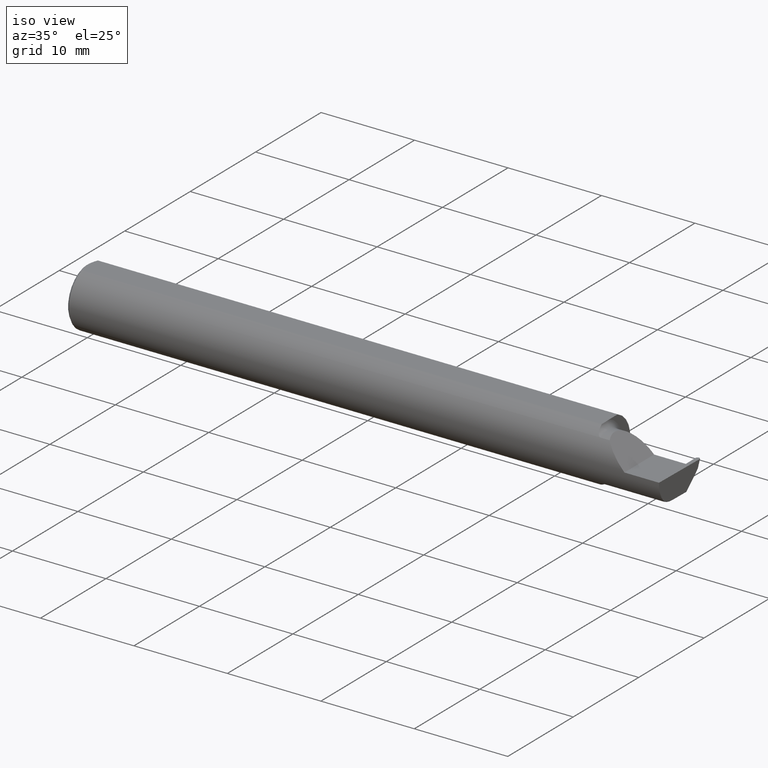
[diagram: clean part render]
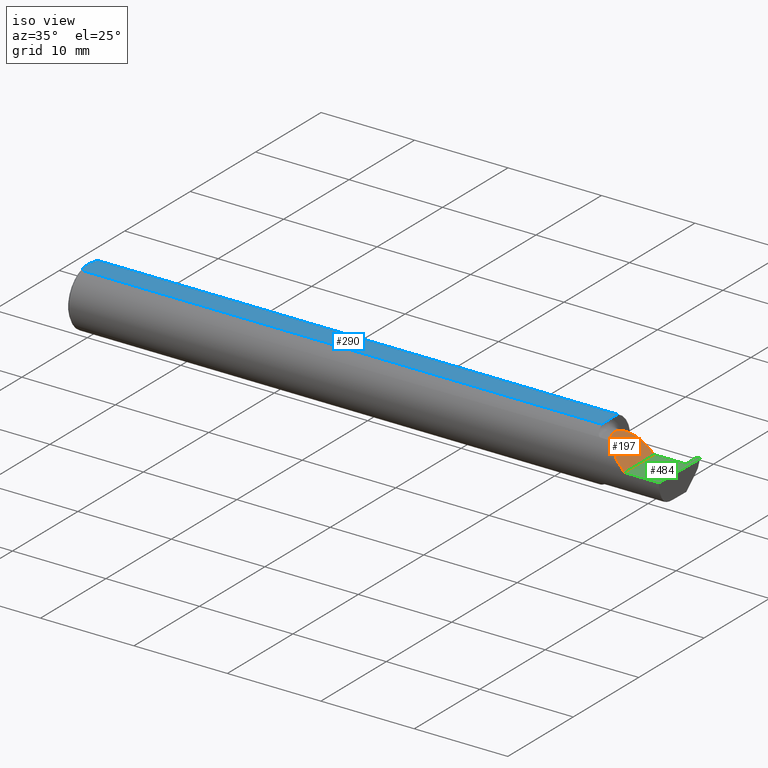
[diagram: same view with three faces highlighted in distinct colors, each labeled with its STEP entity id]
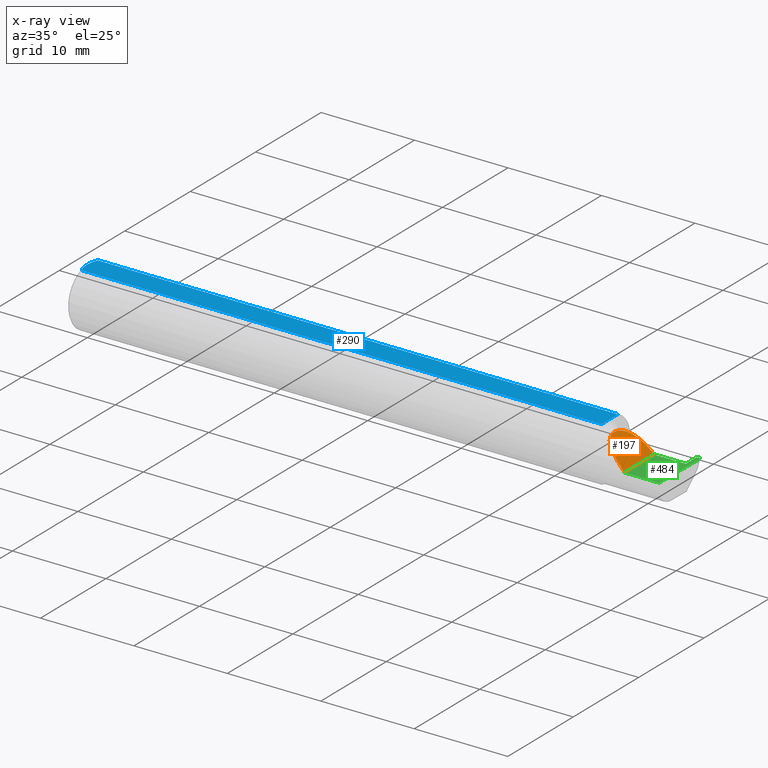
[diagram: x-ray of the same camera — body ghosted, the three highlighted faces saturated]
A machine part, iso view with three faces highlighted in distinct colors.
The next image is the same camera in x-ray (body ghosted, the three faces saturated) — at least one of them is partly hidden behind the body in this view.
Their STEP definitions:

[orange] entity #197 — the highlighted planar face has unit normal (-0.7071, 0, -0.7071).
#1 = EDGE_LOOP ( 'NONE', ( #291, #182, #491 ) ) ;
#6 = CARTESIAN_POINT ( 'NONE',  ( 2.224355642859858317, -0.01728409361947881584, 0.1256443571401406056 ) ) ;
#28 = EDGE_CURVE ( 'NONE', #547, #433, #112, .T. ) ;
#36 = CARTESIAN_POINT ( 'NONE',  ( 2.263691591372603895, -0.09042045454545458161, 0.08630840862739504182 ) ) ;
#64 = CARTESIAN_POINT ( 'NONE',  ( 2.266956372099407258, 0.05399999999999999939, 0.08304362790059187371 ) ) ;
#112 =( BOUNDED_CURVE ( )  B_SPLINE_CURVE ( 3, ( #411, #296, #564, #616 ),
 .UNSPECIFIED., .F., .T. ) 
 B_SPLINE_CURVE_WITH_KNOTS ( ( 4, 4 ),
 ( 4.712388980384689674, 5.474523801125204869 ),
 .UNSPECIFIED. ) 
 CURVE ( )  GEOMETRIC_REPRESENTATION_ITEM ( )  RATIONAL_B_SPLINE_CURVE ( ( 1.000000000000000000, 0.9521787881681385013, 0.9521787881681385013, 1.000000000000000000 ) ) 
 REPRESENTATION_ITEM ( '' )  );
#119 = CARTESIAN_POINT ( 'NONE',  ( 2.263691591372603895, -0.09042045454545458161, 0.08630840862739504182 ) ) ;
#128 = CARTESIAN_POINT ( 'NONE',  ( 2.350000000000000089, -0.2500000000000000555, 1.836970198721028825E-17 ) ) ;
#157 = DIRECTION ( 'NONE',  ( -0.7071067811865439090, 0.000000000000000000, -0.7071067811865511255 ) ) ;
#182 = ORIENTED_EDGE ( 'NONE', *, *, #28, .F. ) ;
#197 = ADVANCED_FACE ( 'NONE', ( #377 ), #482, .F. ) ;
#219 = CARTESIAN_POINT ( 'NONE',  ( 2.350000000000000089, -0.1250000000000000278, 1.836970198721028825E-17 ) ) ;
#235 = AXIS2_PLACEMENT_3D ( 'NONE', #373, #157, #645 ) ;
#261 =( BOUNDED_CURVE ( )  B_SPLINE_CURVE ( 3, ( #119, #6, #64, #543 ),
 .UNSPECIFIED., .F., .F. ) 
 B_SPLINE_CURVE_WITH_KNOTS ( ( 4, 4 ),
 ( 5.789722842198294472, 7.853981633974482790 ),
 .UNSPECIFIED. ) 
 CURVE ( )  GEOMETRIC_REPRESENTATION_ITEM ( )  RATIONAL_B_SPLINE_CURVE ( ( 1.000000000000000000, 0.6753281001527240424, 0.6753281001527240424, 1.000000000000000000 ) ) 
 REPRESENTATION_ITEM ( '' )  );
#291 = ORIENTED_EDGE ( 'NONE', *, *, #658, .F. ) ;
#296 = CARTESIAN_POINT ( 'NONE',  ( 2.317450832343515899, -0.1250000000000000278, 0.03254916765648410010 ) ) ;
#373 = CARTESIAN_POINT ( 'NONE',  ( 2.350000000000000089, -0.2500000000000000555, 1.836970198721028825E-17 ) ) ;
#377 = FACE_OUTER_BOUND ( 'NONE', #1, .T. ) ;
#381 = CARTESIAN_POINT ( 'NONE',  ( 2.350000000000000089, 0.05399999999999999245, 3.673940397442056417E-17 ) ) ;
#411 = CARTESIAN_POINT ( 'NONE',  ( 2.350000000000000089, -0.1250000000000000278, 1.836970198721028825E-17 ) ) ;
#429 = VECTOR ( 'NONE', #603, 39.37007874015748143 ) ;
#433 = VERTEX_POINT ( 'NONE', #36 ) ;
#482 = PLANE ( 'NONE',  #235 ) ;
#491 = ORIENTED_EDGE ( 'NONE', *, *, #642, .T. ) ;
#543 = CARTESIAN_POINT ( 'NONE',  ( 2.350000000000000089, 0.05399999999999999245, 3.673940397442056417E-17 ) ) ;
#547 = VERTEX_POINT ( 'NONE', #219 ) ;
#564 = CARTESIAN_POINT ( 'NONE',  ( 2.287236475649208511, -0.1128945894460739036, 0.06276352435079098069 ) ) ;
#603 = DIRECTION ( 'NONE',  ( -0.000000000000000000, 1.000000000000000000, -0.000000000000000000 ) ) ;
#616 = CARTESIAN_POINT ( 'NONE',  ( 2.263691591372603895, -0.09042045454545458161, 0.08630840862739504182 ) ) ;
#642 = EDGE_CURVE ( 'NONE', #547, #677, #651, .T. ) ;
#645 = DIRECTION ( 'NONE',  ( -0.7071067811865511255, 0.000000000000000000, 0.7071067811865439090 ) ) ;
#651 = LINE ( 'NONE', #128, #429 ) ;
#658 = EDGE_CURVE ( 'NONE', #433, #677, #261, .T. ) ;
#677 = VERTEX_POINT ( 'NONE', #381 ) ;

[blue] entity #290 — the highlighted planar face has unit normal (0, 0, 1).
#3 = CARTESIAN_POINT ( 'NONE',  ( 2.753179778023443269, 0.1250000000000000278, 0.1149999999999999217 ) ) ;
#7 = CARTESIAN_POINT ( 'NONE',  ( 2.201395249340555527, -0.04087966525208431429, 0.1149999999999999356 ) ) ;
#29 = CARTESIAN_POINT ( 'NONE',  ( 1.642610067308552155E-16, 0.01684316307400865464, 0.1149999999999999217 ) ) ;
#31 = CARTESIAN_POINT ( 'NONE',  ( 0.000000000000000000, 3.414809992080329023E-17, 0.1149999999999999217 ) ) ;
#33 = VERTEX_POINT ( 'NONE', #188 ) ;
#35 = CARTESIAN_POINT ( 'NONE',  ( 0.004414142251465132810, -0.03315347577847933824, 0.1149999999999999356 ) ) ;
#72 = ORIENTED_EDGE ( 'NONE', *, *, #519, .T. ) ;
#81 = CARTESIAN_POINT ( 'NONE',  ( 0.006956794985978487743, -0.04122489957750442163, 0.1149999999999999356 ) ) ;
#83 = ORIENTED_EDGE ( 'NONE', *, *, #573, .T. ) ;
#86 = EDGE_CURVE ( 'NONE', #33, #555, #419, .T. ) ;
#90 = CARTESIAN_POINT ( 'NONE',  ( 2.200000000000000178, 0.1250000000000000278, 0.1149999999999999217 ) ) ;
#91 = CARTESIAN_POINT ( 'NONE',  ( 0.000000000000000000, 3.414809992080329023E-17, 0.1149999999999999217 ) ) ;
#96 = DIRECTION ( 'NONE',  ( 1.000000000000000000, 0.000000000000000000, 0.000000000000000000 ) ) ;
#98 = CARTESIAN_POINT ( 'NONE',  ( 2.200000000000000622, -0.008475349815581305693, 0.1149999999999999356 ) ) ;
#122 = ORIENTED_EDGE ( 'NONE', *, *, #384, .F. ) ;
#126 = ORIENTED_EDGE ( 'NONE', *, *, #629, .T. ) ;
#141 = CARTESIAN_POINT ( 'NONE',  ( 0.01000000000000042348, 0.04898979485566374442, 0.1149999999999999217 ) ) ;
#148 = VECTOR ( 'NONE', #328, 39.37007874015748143 ) ;
#149 = CARTESIAN_POINT ( 'NONE',  ( 2.200000000000000178, -0.0003651515414568704703, 0.1149999999999999217 ) ) ;
#171 = CARTESIAN_POINT ( 'NONE',  ( 2.200474906351709503, -0.01657217611496075368, 0.1149999999999999217 ) ) ;
#188 = CARTESIAN_POINT ( 'NONE',  ( 0.01000000000000042348, -0.04898979485566374442, 0.1149999999999999217 ) ) ;
#199 = CARTESIAN_POINT ( 'NONE',  ( 0.01000000000000042348, 0.04898979485566374442, 0.1149999999999999217 ) ) ;
#276 = LINE ( 'NONE', #288, #148 ) ;
#277 = DIRECTION ( 'NONE',  ( 0.000000000000000000, 0.000000000000000000, 1.000000000000000000 ) ) ;
#288 = CARTESIAN_POINT ( 'NONE',  ( 0.000000000000000000, 0.04898979485566374442, 0.1149999999999999217 ) ) ;
#290 = ADVANCED_FACE ( 'NONE', ( #435 ), #366, .T. ) ;
#302 = EDGE_CURVE ( 'NONE', #468, #485, #591, .T. ) ;
#305 = DIRECTION ( 'NONE',  ( 3.022133221983130545E-17, 1.000000000000000000, -0.000000000000000000 ) ) ;
#328 = DIRECTION ( 'NONE',  ( -1.000000000000000000, -0.000000000000000000, -0.000000000000000000 ) ) ;
#338 = ORIENTED_EDGE ( 'NONE', *, *, #302, .T. ) ;
#348 = VECTOR ( 'NONE', #305, 39.37007874015748143 ) ;
#366 = PLANE ( 'NONE',  #495 ) ;
#384 = EDGE_CURVE ( 'NONE', #555, #453, #444, .T. ) ;
#413 = LINE ( 'NONE', #90, #348 ) ;
#418 = CARTESIAN_POINT ( 'NONE',  ( 0.003880275146595849479, 0.03337499979622342988, 0.1149999999999999217 ) ) ;
#419 = B_SPLINE_CURVE_WITH_KNOTS ( 'NONE', 3,
 ( #560, #81, #35, #462, #508, #31 ),
 .UNSPECIFIED., .F., .F.,
 ( 4, 2, 4 ),
 ( 0.001061950514642623312, 0.001696734447512964709, 0.002331518380383306322 ),
 .UNSPECIFIED. ) ;
#420 = CARTESIAN_POINT ( 'NONE',  ( 0.000000000000000000, 3.414809992080329023E-17, 0.1149999999999999217 ) ) ;
#424 = ORIENTED_EDGE ( 'NONE', *, *, #86, .F. ) ;
#435 = FACE_OUTER_BOUND ( 'NONE', #551, .T. ) ;
#444 = B_SPLINE_CURVE_WITH_KNOTS ( 'NONE', 3,
 ( #91, #29, #418, #141 ),
 .UNSPECIFIED., .F., .F.,
 ( 4, 4 ),
 ( 0.002331518380383306322, 0.003601362264757408584 ),
 .UNSPECIFIED. ) ;
#453 = VERTEX_POINT ( 'NONE', #199 ) ;
#462 = CARTESIAN_POINT ( 'NONE',  ( 0.0009328476361608245343, -0.01672844127736827086, 0.1149999999999999217 ) ) ;
#468 = VERTEX_POINT ( 'NONE', #586 ) ;
#469 = LINE ( 'NONE', #593, #538 ) ;
#478 = CARTESIAN_POINT ( 'NONE',  ( 2.200000000000000178, -0.0003651515414568704703, 0.1149999999999999217 ) ) ;
#485 = VERTEX_POINT ( 'NONE', #149 ) ;
#487 = DIRECTION ( 'NONE',  ( 1.000000000000000000, 0.000000000000000000, -0.000000000000000000 ) ) ;
#495 = AXIS2_PLACEMENT_3D ( 'NONE', #3, #277, #487 ) ;
#499 = CARTESIAN_POINT ( 'NONE',  ( 2.200000000000000178, 0.04898979485566374442, 0.1149999999999999217 ) ) ;
#508 = CARTESIAN_POINT ( 'NONE',  ( 1.541666659510484467E-16, -0.008419750986449443114, 0.1149999999999999356 ) ) ;
#519 = EDGE_CURVE ( 'NONE', #33, #468, #469, .T. ) ;
#538 = VECTOR ( 'NONE', #96, 39.37007874015748143 ) ;
#551 = EDGE_LOOP ( 'NONE', ( #72, #338, #83, #126, #122, #424 ) ) ;
#555 = VERTEX_POINT ( 'NONE', #420 ) ;
#560 = CARTESIAN_POINT ( 'NONE',  ( 0.01000000000000042348, -0.04898979485566374442, 0.1149999999999999217 ) ) ;
#573 = EDGE_CURVE ( 'NONE', #485, #615, #413, .T. ) ;
#581 = CARTESIAN_POINT ( 'NONE',  ( 2.201278290187167919, -0.04898979485482365254, 0.1149999999999999217 ) ) ;
#586 = CARTESIAN_POINT ( 'NONE',  ( 2.201278290187167919, -0.04898979485482365254, 0.1149999999999999217 ) ) ;
#591 = B_SPLINE_CURVE_WITH_KNOTS ( 'NONE', 3,
 ( #581, #7, #652, #171, #98, #478 ),
 .UNSPECIFIED., .F., .F.,
 ( 4, 2, 4 ),
 ( 0.009319464280412628407, 0.009934044568948268220, 0.01054862485748390803 ),
 .UNSPECIFIED. ) ;
#593 = CARTESIAN_POINT ( 'NONE',  ( 0.000000000000000000, -0.04898979485566374442, 0.1149999999999999217 ) ) ;
#615 = VERTEX_POINT ( 'NONE', #499 ) ;
#629 = EDGE_CURVE ( 'NONE', #615, #453, #276, .T. ) ;
#652 = CARTESIAN_POINT ( 'NONE',  ( 2.201184456069787743, -0.03277259381711437186, 0.1149999999999999356 ) ) ;

[green] entity #484 — the highlighted planar face has unit normal (-0, 0, -1).
#2 = CARTESIAN_POINT ( 'NONE',  ( 2.200000000000000178, 0.05399999999999999939, 3.673940397442056417E-17 ) ) ;
#32 = DIRECTION ( 'NONE',  ( -0.01745240643727528213, -0.9998476951563914916, 0.000000000000000000 ) ) ;
#42 = ORIENTED_EDGE ( 'NONE', *, *, #588, .F. ) ;
#48 = DIRECTION ( 'NONE',  ( -1.000000000000000000, -0.000000000000000000, -0.000000000000000000 ) ) ;
#51 = DIRECTION ( 'NONE',  ( -1.000000000000000000, 0.000000000000000000, 1.224646799147352468E-16 ) ) ;
#57 = DIRECTION ( 'NONE',  ( 1.000000000000000000, -3.022133221983130545E-17, 0.000000000000000000 ) ) ;
#60 =( BOUNDED_CURVE ( )  B_SPLINE_CURVE ( 3, ( #565, #250, #690, #406 ),
 .UNSPECIFIED., .F., .T. ) 
 B_SPLINE_CURVE_WITH_KNOTS ( ( 4, 4 ),
 ( 1.677524580234106333, 3.253450286950926529 ),
 .UNSPECIFIED. ) 
 CURVE ( )  GEOMETRIC_REPRESENTATION_ITEM ( )  RATIONAL_B_SPLINE_CURVE ( ( 1.000000000000000000, 0.8035272986452476340, 0.8035272986452476340, 1.000000000000000000 ) ) 
 REPRESENTATION_ITEM ( '' )  );
#78 = ORIENTED_EDGE ( 'NONE', *, *, #351, .F. ) ;
#79 = VECTOR ( 'NONE', #165, 39.37007874015748143 ) ;
#88 = LINE ( 'NONE', #638, #159 ) ;
#97 = CARTESIAN_POINT ( 'NONE',  ( 2.491352627470454273, 0.1219999999999999835, 0.000000000000000000 ) ) ;
#102 = DIRECTION ( 'NONE',  ( -1.224646799147352468E-16, 0.000000000000000000, -1.000000000000000000 ) ) ;
#114 = DIRECTION ( 'NONE',  ( -0.01745240643727751992, 0.9998476951563912696, -0.000000000000000000 ) ) ;
#123 = CARTESIAN_POINT ( 'NONE',  ( 2.491130782529545673, 0.1219999999999999835, 0.000000000000000000 ) ) ;
#128 = CARTESIAN_POINT ( 'NONE',  ( 2.350000000000000089, -0.2500000000000000555, 1.836970198721028825E-17 ) ) ;
#130 = EDGE_LOOP ( 'NONE', ( #42, #158, #554, #142, #643, #585, #449, #78, #331 ) ) ;
#142 = ORIENTED_EDGE ( 'NONE', *, *, #466, .F. ) ;
#152 = CARTESIAN_POINT ( 'NONE',  ( 3.749399456654637998E-32, -0.1249999999999999861, 3.061616997868380183E-16 ) ) ;
#156 = LINE ( 'NONE', #310, #79 ) ;
#158 = ORIENTED_EDGE ( 'NONE', *, *, #635, .T. ) ;
#159 = VECTOR ( 'NONE', #32, 39.37007874015747433 ) ;
#165 = DIRECTION ( 'NONE',  ( 1.000000000000000000, -0.000000000000000000, -0.000000000000000000 ) ) ;
#178 = VERTEX_POINT ( 'NONE', #97 ) ;
#185 = VECTOR ( 'NONE', #48, 39.37007874015748143 ) ;
#219 = CARTESIAN_POINT ( 'NONE',  ( 2.350000000000000089, -0.1250000000000000278, 1.836970198721028825E-17 ) ) ;
#234 = CARTESIAN_POINT ( 'NONE',  ( 2.499991849855255133, 0.1126983510377570219, 0.000000000000000000 ) ) ;
#238 = CARTESIAN_POINT ( 'NONE',  ( 2.485980426908312779, 0.1220000000000002333, 1.771906798517136265E-17 ) ) ;
#250 = CARTESIAN_POINT ( 'NONE',  ( 2.500086857341869528, 0.1181413263005396674, -1.815796599807464593E-17 ) ) ;
#259 = CARTESIAN_POINT ( 'NONE',  ( 2.483516143673287768, 0.05399999999999997163, 0.000000000000000000 ) ) ;
#262 = CARTESIAN_POINT ( 'NONE',  ( -3.937007874019685528E-05, 0.1219999999999999835, 0.000000000000000000 ) ) ;
#310 = CARTESIAN_POINT ( 'NONE',  ( 2.483516143673287768, 0.05399999999999997163, 0.000000000000000000 ) ) ;
#320 = LINE ( 'NONE', #2, #461 ) ;
#325 = VECTOR ( 'NONE', #666, 39.37007874015748143 ) ;
#331 = ORIENTED_EDGE ( 'NONE', *, *, #359, .T. ) ;
#332 = CARTESIAN_POINT ( 'NONE',  ( 2.491130782529545673, 0.1219999999999999835, 0.000000000000000000 ) ) ;
#337 = CARTESIAN_POINT ( 'NONE',  ( 2.482396552658129973, 0.1181413263005396674, 1.815796599807465209E-17 ) ) ;
#351 = EDGE_CURVE ( 'NONE', #662, #542, #88, .T. ) ;
#359 = EDGE_CURVE ( 'NONE', #662, #178, #60, .T. ) ;
#363 = CARTESIAN_POINT ( 'NONE',  ( 2.495842809704562626, -0.1250000000000000000, 0.000000000000000000 ) ) ;
#365 = FACE_OUTER_BOUND ( 'NONE', #130, .T. ) ;
#371 =( BOUNDED_CURVE ( )  B_SPLINE_CURVE ( 3, ( #123, #238, #337, #450 ),
 .UNSPECIFIED., .F., .T. ) 
 B_SPLINE_CURVE_WITH_KNOTS ( ( 4, 4 ),
 ( 6.171327673818449711, 7.747253380535275902 ),
 .UNSPECIFIED. ) 
 CURVE ( )  GEOMETRIC_REPRESENTATION_ITEM ( )  RATIONAL_B_SPLINE_CURVE ( ( 1.000000000000000000, 0.8035272986452463018, 0.8035272986452463018, 1.000000000000000000 ) ) 
 REPRESENTATION_ITEM ( '' )  );
#381 = CARTESIAN_POINT ( 'NONE',  ( 2.350000000000000089, 0.05399999999999999245, 3.673940397442056417E-17 ) ) ;
#387 = VERTEX_POINT ( 'NONE', #259 ) ;
#406 = CARTESIAN_POINT ( 'NONE',  ( 2.491352627470454273, 0.1219999999999999835, 0.000000000000000000 ) ) ;
#425 = LINE ( 'NONE', #152, #185 ) ;
#429 = VECTOR ( 'NONE', #603, 39.37007874015748143 ) ;
#445 = AXIS2_PLACEMENT_3D ( 'NONE', #579, #102, #51 ) ;
#446 = CARTESIAN_POINT ( 'NONE',  ( 2.482491560144744369, 0.1126983510377570080, 0.000000000000000000 ) ) ;
#449 = ORIENTED_EDGE ( 'NONE', *, *, #512, .F. ) ;
#450 = CARTESIAN_POINT ( 'NONE',  ( 2.482491560144744369, 0.1126983510377570080, 0.000000000000000000 ) ) ;
#461 = VECTOR ( 'NONE', #57, 39.37007874015748143 ) ;
#466 = EDGE_CURVE ( 'NONE', #596, #387, #156, .T. ) ;
#484 = ADVANCED_FACE ( 'NONE', ( #365 ), #632, .F. ) ;
#510 = EDGE_CURVE ( 'NONE', #677, #596, #320, .T. ) ;
#512 = EDGE_CURVE ( 'NONE', #542, #547, #425, .T. ) ;
#520 = LINE ( 'NONE', #262, #325 ) ;
#539 = CARTESIAN_POINT ( 'NONE',  ( 2.477329199258169634, 0.05399999999999997163, 0.000000000000000000 ) ) ;
#542 = VERTEX_POINT ( 'NONE', #363 ) ;
#547 = VERTEX_POINT ( 'NONE', #219 ) ;
#554 = ORIENTED_EDGE ( 'NONE', *, *, #688, .F. ) ;
#565 = CARTESIAN_POINT ( 'NONE',  ( 2.499991849855255133, 0.1126983510377570219, 0.000000000000000000 ) ) ;
#579 = CARTESIAN_POINT ( 'NONE',  ( 2.500000000000000000, -0.2500000000000000555, 0.000000000000000000 ) ) ;
#585 = ORIENTED_EDGE ( 'NONE', *, *, #642, .F. ) ;
#588 = EDGE_CURVE ( 'NONE', #613, #178, #520, .T. ) ;
#596 = VERTEX_POINT ( 'NONE', #539 ) ;
#597 = LINE ( 'NONE', #609, #631 ) ;
#603 = DIRECTION ( 'NONE',  ( -0.000000000000000000, 1.000000000000000000, -0.000000000000000000 ) ) ;
#609 = CARTESIAN_POINT ( 'NONE',  ( 2.482484743930750248, 0.1130888516759625262, 0.000000000000000000 ) ) ;
#613 = VERTEX_POINT ( 'NONE', #332 ) ;
#631 = VECTOR ( 'NONE', #114, 39.37007874015748854 ) ;
#632 = PLANE ( 'NONE',  #445 ) ;
#635 = EDGE_CURVE ( 'NONE', #613, #664, #371, .T. ) ;
#638 = CARTESIAN_POINT ( 'NONE',  ( 2.499998666069249253, 0.1130888516759625262, 0.000000000000000000 ) ) ;
#642 = EDGE_CURVE ( 'NONE', #547, #677, #651, .T. ) ;
#643 = ORIENTED_EDGE ( 'NONE', *, *, #510, .F. ) ;
#651 = LINE ( 'NONE', #128, #429 ) ;
#662 = VERTEX_POINT ( 'NONE', #234 ) ;
#664 = VERTEX_POINT ( 'NONE', #446 ) ;
#666 = DIRECTION ( 'NONE',  ( 1.000000000000000000, -0.000000000000000000, -0.000000000000000000 ) ) ;
#677 = VERTEX_POINT ( 'NONE', #381 ) ;
#688 = EDGE_CURVE ( 'NONE', #387, #664, #597, .T. ) ;
#690 = CARTESIAN_POINT ( 'NONE',  ( 2.496502983091687611, 0.1220000000000001916, -1.771906798517135649E-17 ) ) ;